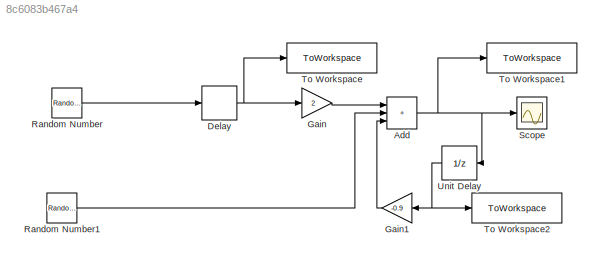
MODEL slx_8c6083b467a4
KIND model
CONFIG AbsTol = auto
CONFIG EnableMultiTasking = off
CONFIG FixedStep = 0.1
CONFIG MaxStep = auto
CONFIG MinStep = auto
CONFIG RelTol = 1e-3
CONFIG SampleTimeConstraint = Unconstrained
CONFIG SolverName = FixedStepDiscrete
CONFIG StartTime = 0.0
CONFIG StopTime = 20
BLOCK [Sum] Add
  IconShape = rectangular
  Inputs = +++
BLOCK [Delay] Delay
  InputPortMap = u0
BLOCK [Gain] Gain
  Gain = 2
BLOCK [Gain] Gain1
  Gain = -0.9
  NameLocation = top
BLOCK [RandomNumber] Random Number
  SampleTime = 0.1
BLOCK [RandomNumber] Random Number1
  SampleTime = 0.1
  Variance = 0.1
BLOCK [Scope] Scope
  Floating = off
  NumInputPorts = 1
  ScopeSpecificationString = Simulink.scopes.TimeScopeBlockCfg('CurrentConfiguration', extmgr.ConfigurationSet(extmgr.Configuration('Core','General UI',true),extmgr.Configuration('Core','Source UI',true),extmgr.Configuration('Sources','WiredSimulink',true),extmgr.Configuration('Visuals','Time Domain',true,'SerializedDisplays',{struct('MinYLimReal','-12.9798','MaxYLimReal','12.79317','YLabelReal','','MinYLimMag','0.00000','Max...<+1354ch>
BLOCK [ToWorkspace] To Workspace
  FixptAsFi = on
  MaxDataPoints = inf
  SampleTime = -1
  VariableName = u2
BLOCK [ToWorkspace] To Workspace1
  FixptAsFi = on
  MaxDataPoints = inf
  SampleTime = -1
  VariableName = y
BLOCK [ToWorkspace] To Workspace2
  FixptAsFi = on
  MaxDataPoints = inf
  SampleTime = -1
  VariableName = y1
BLOCK [UnitDelay] Unit Delay
  HasFrameUpgradeWarning = on
  NameLocation = top
  SampleTime = -1
NET Add:1 -> Scope:1, To Workspace1:1, Unit Delay:1
NET Delay:1 -> Gain:1, To Workspace:1
LINE Gain1:1 -> Add:3
LINE Gain:1 -> Add:1
LINE Random Number1:1 -> Add:2
LINE Random Number:1 -> Delay:1
NET Unit Delay:1 -> Gain1:1, To Workspace2:1
note: NET lines group one-source signal fan-out (src -> all destinations, sorted); 1:1 wires keep LINE
